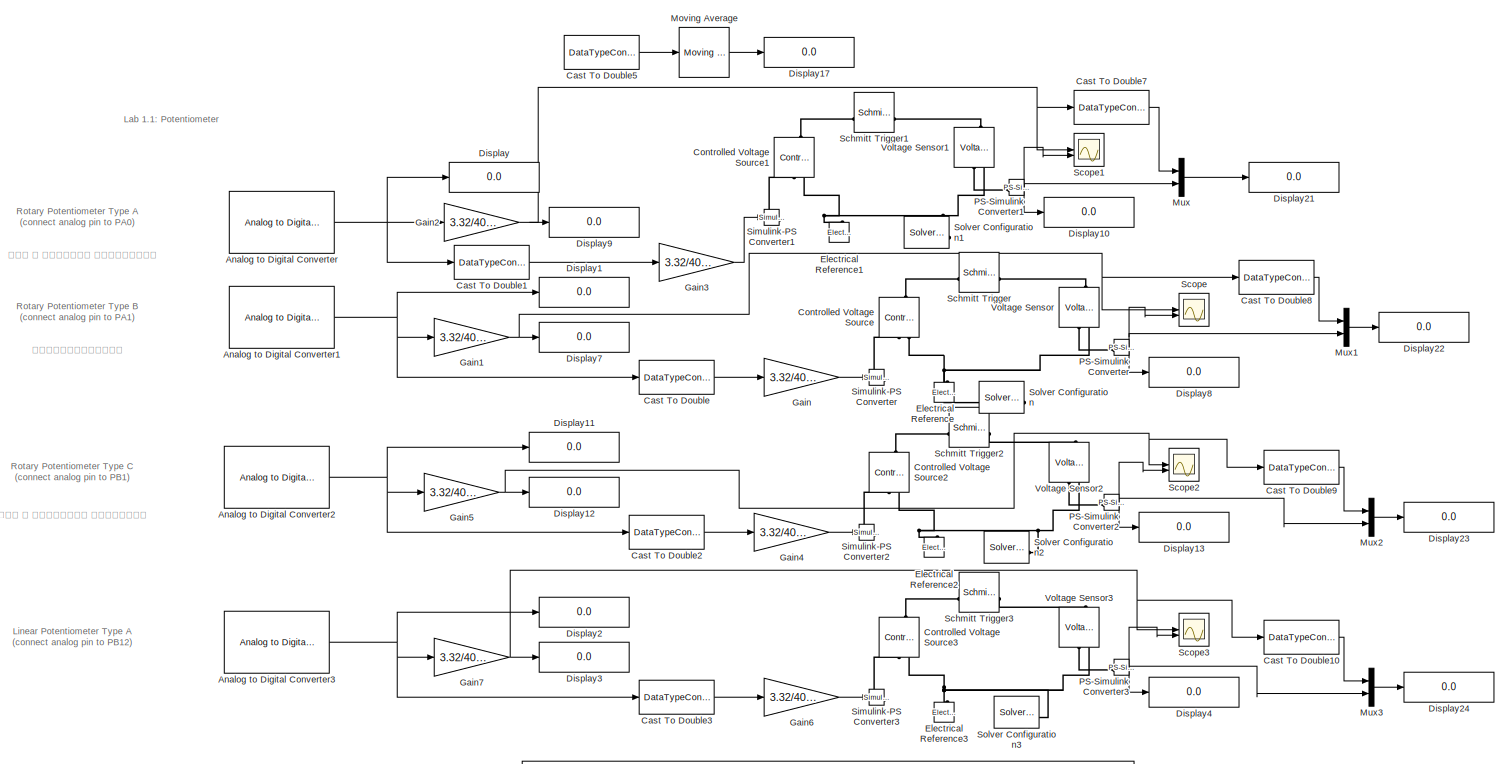
[diagram: root canvas - part 1/3, top left region]
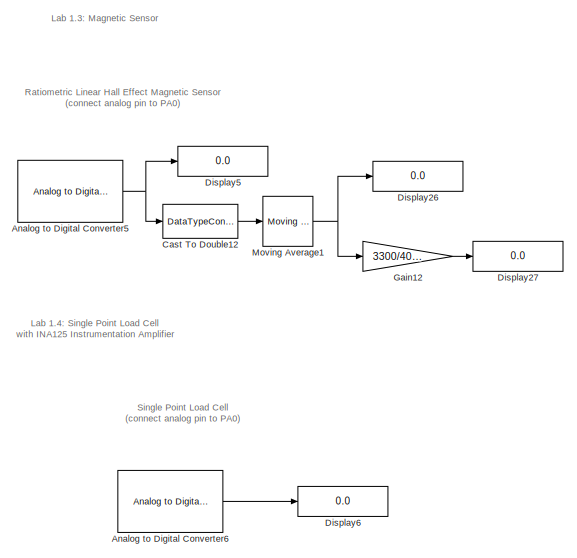
[diagram: root canvas - part 2/3, middle right region]
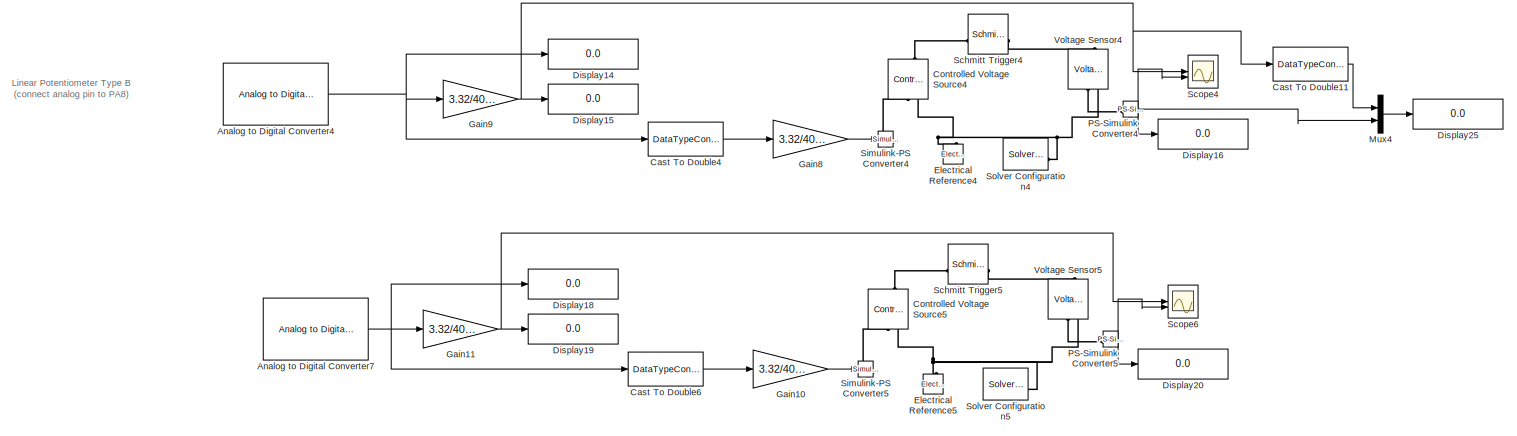
[diagram: root canvas - part 3/3, bottom left region]
MODEL slx_dd20733b9f0f
KIND model
CONFIG AbsTol = auto
CONFIG EnableMultiTasking = on
CONFIG FixedStep = auto
CONFIG MaxStep = auto
CONFIG MinStep = auto
CONFIG RelTol = 1e-3
CONFIG SampleTimeConstraint = Unconstrained
CONFIG SolverName = FixedStepAuto
CONFIG StartTime = 0.0
CONFIG StopTime = inf
BLOCK [Reference] Analog to Digital Converter  REF=stm32f4xxblockslib/Analog to Digital Converter
  Commented = on
  LibrarySourceBlock = stm32g4xxblockslib/Analog to Digital Converter
  SourceBlock = stm32f4xxblockslib/Analog to Digital Converter
  SourceType = stm32cube.blocks.AnalogInput
BLOCK [Reference] Analog to Digital Converter1  REF=stm32f4xxblockslib/Analog to Digital Converter
  Commented = on
  LibrarySourceBlock = stm32g4xxblockslib/Analog to Digital Converter
  SourceBlock = stm32f4xxblockslib/Analog to Digital Converter
  SourceType = stm32cube.blocks.AnalogInput
BLOCK [Reference] Analog to Digital Converter2  REF=stm32f4xxblockslib/Analog to Digital Converter
  Commented = on
  LibrarySourceBlock = stm32g4xxblockslib/Analog to Digital Converter
  SourceBlock = stm32f4xxblockslib/Analog to Digital Converter
  SourceType = stm32cube.blocks.AnalogInput
BLOCK [Reference] Analog to Digital Converter3  REF=stm32f4xxblockslib/Analog to Digital Converter
  Commented = on
  LibrarySourceBlock = stm32g4xxblockslib/Analog to Digital Converter
  SourceBlock = stm32f4xxblockslib/Analog to Digital Converter
  SourceType = stm32cube.blocks.AnalogInput
BLOCK [Reference] Analog to Digital Converter4  REF=stm32f4xxblockslib/Analog to Digital Converter
  Commented = on
  LibrarySourceBlock = stm32g4xxblockslib/Analog to Digital Converter
  SourceBlock = stm32f4xxblockslib/Analog to Digital Converter
  SourceType = stm32cube.blocks.AnalogInput
BLOCK [Reference] Analog to Digital Converter5  REF=stm32f4xxblockslib/Analog to Digital Converter
  LibrarySourceBlock = stm32g4xxblockslib/Analog to Digital Converter
  SourceBlock = stm32f4xxblockslib/Analog to Digital Converter
  SourceType = stm32cube.blocks.AnalogInput
BLOCK [Reference] Analog to Digital Converter6  REF=stm32f4xxblockslib/Analog to Digital Converter
  Commented = on
  LibrarySourceBlock = stm32g4xxblockslib/Analog to Digital Converter
  SourceBlock = stm32f4xxblockslib/Analog to Digital Converter
  SourceType = stm32cube.blocks.AnalogInput
BLOCK [Reference] Analog to Digital Converter7  REF=stm32f4xxblockslib/Analog to Digital Converter
  Commented = on
  LibrarySourceBlock = stm32g4xxblockslib/Analog to Digital Converter
  SourceBlock = stm32f4xxblockslib/Analog to Digital Converter
  SourceType = stm32cube.blocks.AnalogInput
BLOCK [DataTypeConversion] Cast To Double
  Commented = on
  OutDataTypeStr = double
  RndMeth = Floor
  SaturateOnIntegerOverflow = off
BLOCK [DataTypeConversion] Cast To Double1
  Commented = on
  OutDataTypeStr = double
  RndMeth = Floor
  SaturateOnIntegerOverflow = off
BLOCK [DataTypeConversion] Cast To Double10
  Commented = on
  OutDataTypeStr = double
  RndMeth = Floor
  SaturateOnIntegerOverflow = off
BLOCK [DataTypeConversion] Cast To Double11
  Commented = on
  OutDataTypeStr = double
  RndMeth = Floor
  SaturateOnIntegerOverflow = off
BLOCK [DataTypeConversion] Cast To Double12
  OutDataTypeStr = double
  RndMeth = Floor
  SaturateOnIntegerOverflow = off
BLOCK [DataTypeConversion] Cast To Double2
  Commented = on
  OutDataTypeStr = double
  RndMeth = Floor
  SaturateOnIntegerOverflow = off
BLOCK [DataTypeConversion] Cast To Double3
  Commented = on
  OutDataTypeStr = double
  RndMeth = Floor
  SaturateOnIntegerOverflow = off
BLOCK [DataTypeConversion] Cast To Double4
  Commented = on
  OutDataTypeStr = double
  RndMeth = Floor
  SaturateOnIntegerOverflow = off
BLOCK [DataTypeConversion] Cast To Double5
  Commented = on
  OutDataTypeStr = double
  RndMeth = Floor
  SaturateOnIntegerOverflow = off
BLOCK [DataTypeConversion] Cast To Double6
  Commented = on
  OutDataTypeStr = double
  RndMeth = Floor
  SaturateOnIntegerOverflow = off
BLOCK [DataTypeConversion] Cast To Double7
  Commented = on
  OutDataTypeStr = double
  RndMeth = Floor
  SaturateOnIntegerOverflow = off
BLOCK [DataTypeConversion] Cast To Double8
  Commented = on
  OutDataTypeStr = double
  RndMeth = Floor
  SaturateOnIntegerOverflow = off
BLOCK [DataTypeConversion] Cast To Double9
  Commented = on
  OutDataTypeStr = double
  RndMeth = Floor
  SaturateOnIntegerOverflow = off
BLOCK [Reference] Controlled Voltage Source  REF=fl_lib/Electrical/Electrical Sources/Controlled Voltage
Source
  Commented = on
  NameLocation = right
  SourceBlock = fl_lib/Electrical/Electrical Sources/Controlled Voltage\nSource
  SourceType = Controlled Voltage\nSource
BLOCK [Reference] Controlled Voltage Source1  REF=fl_lib/Electrical/Electrical Sources/Controlled Voltage
Source
  Commented = on
  NameLocation = right
  SourceBlock = fl_lib/Electrical/Electrical Sources/Controlled Voltage\nSource
  SourceType = Controlled Voltage\nSource
BLOCK [Reference] Controlled Voltage Source2  REF=fl_lib/Electrical/Electrical Sources/Controlled Voltage
Source
  Commented = on
  NameLocation = right
  SourceBlock = fl_lib/Electrical/Electrical Sources/Controlled Voltage\nSource
  SourceType = Controlled Voltage\nSource
BLOCK [Reference] Controlled Voltage Source3  REF=fl_lib/Electrical/Electrical Sources/Controlled Voltage
Source
  Commented = on
  NameLocation = right
  SourceBlock = fl_lib/Electrical/Electrical Sources/Controlled Voltage\nSource
  SourceType = Controlled Voltage\nSource
BLOCK [Reference] Controlled Voltage Source4  REF=fl_lib/Electrical/Electrical Sources/Controlled Voltage
Source
  Commented = on
  NameLocation = right
  SourceBlock = fl_lib/Electrical/Electrical Sources/Controlled Voltage\nSource
  SourceType = Controlled Voltage\nSource
BLOCK [Reference] Controlled Voltage Source5  REF=fl_lib/Electrical/Electrical Sources/Controlled Voltage
Source
  Commented = on
  NameLocation = right
  SourceBlock = fl_lib/Electrical/Electrical Sources/Controlled Voltage\nSource
  SourceType = Controlled Voltage\nSource
BLOCK [Display] Display
  Commented = on
  Decimation = 1
BLOCK [Display] Display1
  Commented = on
  Decimation = 1
BLOCK [Display] Display10
  Commented = on
  Decimation = 1
BLOCK [Display] Display11
  Commented = on
  Decimation = 1
BLOCK [Display] Display12
  Commented = on
  Decimation = 1
BLOCK [Display] Display13
  Commented = on
  Decimation = 1
BLOCK [Display] Display14
  Commented = on
  Decimation = 1
BLOCK [Display] Display15
  Commented = on
  Decimation = 1
BLOCK [Display] Display16
  Commented = on
  Decimation = 1
BLOCK [Display] Display17
  Commented = on
  Decimation = 1
BLOCK [Display] Display18
  Commented = on
  Decimation = 1
BLOCK [Display] Display19
  Commented = on
  Decimation = 1
BLOCK [Display] Display2
  Commented = on
  Decimation = 1
BLOCK [Display] Display20
  Commented = on
  Decimation = 1
BLOCK [Display] Display21
  Commented = on
  Decimation = 1
BLOCK [Display] Display22
  Commented = on
  Decimation = 1
BLOCK [Display] Display23
  Commented = on
  Decimation = 1
BLOCK [Display] Display24
  Commented = on
  Decimation = 1
BLOCK [Display] Display25
  Commented = on
  Decimation = 1
BLOCK [Display] Display26
  Decimation = 1
BLOCK [Display] Display27
  Decimation = 1
BLOCK [Display] Display3
  Commented = on
  Decimation = 1
BLOCK [Display] Display4
  Commented = on
  Decimation = 1
BLOCK [Display] Display5
  Decimation = 1
BLOCK [Display] Display6
  Commented = on
  Decimation = 1
BLOCK [Display] Display7
  Commented = on
  Decimation = 1
BLOCK [Display] Display8
  Commented = on
  Decimation = 1
BLOCK [Display] Display9
  Commented = on
  Decimation = 1
BLOCK [Reference] Electrical Reference  REF=fl_lib/Electrical/Electrical Elements/Electrical Reference
  Commented = on
  NameLocation = right
  SourceBlock = fl_lib/Electrical/Electrical Elements/Electrical Reference
  SourceType = Electrical Reference
BLOCK [Reference] Electrical Reference1  REF=fl_lib/Electrical/Electrical Elements/Electrical Reference
  Commented = on
  NameLocation = right
  SourceBlock = fl_lib/Electrical/Electrical Elements/Electrical Reference
  SourceType = Electrical Reference
BLOCK [Reference] Electrical Reference2  REF=fl_lib/Electrical/Electrical Elements/Electrical Reference
  Commented = on
  NameLocation = right
  SourceBlock = fl_lib/Electrical/Electrical Elements/Electrical Reference
  SourceType = Electrical Reference
BLOCK [Reference] Electrical Reference3  REF=fl_lib/Electrical/Electrical Elements/Electrical Reference
  Commented = on
  NameLocation = right
  SourceBlock = fl_lib/Electrical/Electrical Elements/Electrical Reference
  SourceType = Electrical Reference
BLOCK [Reference] Electrical Reference4  REF=fl_lib/Electrical/Electrical Elements/Electrical Reference
  Commented = on
  NameLocation = right
  SourceBlock = fl_lib/Electrical/Electrical Elements/Electrical Reference
  SourceType = Electrical Reference
BLOCK [Reference] Electrical Reference5  REF=fl_lib/Electrical/Electrical Elements/Electrical Reference
  Commented = on
  NameLocation = right
  SourceBlock = fl_lib/Electrical/Electrical Elements/Electrical Reference
  SourceType = Electrical Reference
BLOCK [Gain] Gain
  Commented = on
  Gain = 3.32/4095
BLOCK [Gain] Gain1
  Commented = on
  Gain = 3.32/4095
BLOCK [Gain] Gain10
  Commented = on
  Gain = 3.32/4095
BLOCK [Gain] Gain11
  Commented = on
  Gain = 3.32/4095
BLOCK [Gain] Gain12
  Gain = 3300/4095
BLOCK [Gain] Gain2
  Commented = on
  Gain = 3.32/4095
BLOCK [Gain] Gain3
  Commented = on
  Gain = 3.32/4095
BLOCK [Gain] Gain4
  Commented = on
  Gain = 3.32/4095
BLOCK [Gain] Gain5
  Commented = on
  Gain = 3.32/4095
BLOCK [Gain] Gain6
  Commented = on
  Gain = 3.32/4095
BLOCK [Gain] Gain7
  Commented = on
  Gain = 3.32/4095
BLOCK [Gain] Gain8
  Commented = on
  Gain = 3.32/4095
BLOCK [Gain] Gain9
  Commented = on
  Gain = 3.32/4095
BLOCK [Reference] Moving Average  REF=dspstat3/Moving
Average
  Commented = on
  SourceBlock = dspstat3/Moving\nAverage
  SourceType = dsp.simulink.MovingAverage
BLOCK [Reference] Moving Average1  REF=dspstat3/Moving
Average
  SourceBlock = dspstat3/Moving\nAverage
  SourceType = dsp.simulink.MovingAverage
BLOCK [Mux] Mux
  Commented = on
  DisplayOption = bar
  Inputs = 2
BLOCK [Mux] Mux1
  Commented = on
  DisplayOption = bar
  Inputs = 2
BLOCK [Mux] Mux2
  Commented = on
  DisplayOption = bar
  Inputs = 2
BLOCK [Mux] Mux3
  Commented = on
  DisplayOption = bar
  Inputs = 2
BLOCK [Mux] Mux4
  Commented = on
  DisplayOption = bar
  Inputs = 2
BLOCK [Reference] PS-Simulink Converter  REF=nesl_utility/PS-Simulink
Converter
  Commented = on
  SourceBlock = nesl_utility/PS-Simulink\nConverter
  SourceType = PS-Simulink\nConverter
BLOCK [Reference] PS-Simulink Converter1  REF=nesl_utility/PS-Simulink
Converter
  Commented = on
  SourceBlock = nesl_utility/PS-Simulink\nConverter
  SourceType = PS-Simulink\nConverter
BLOCK [Reference] PS-Simulink Converter2  REF=nesl_utility/PS-Simulink
Converter
  Commented = on
  SourceBlock = nesl_utility/PS-Simulink\nConverter
  SourceType = PS-Simulink\nConverter
BLOCK [Reference] PS-Simulink Converter3  REF=nesl_utility/PS-Simulink
Converter
  Commented = on
  SourceBlock = nesl_utility/PS-Simulink\nConverter
  SourceType = PS-Simulink\nConverter
BLOCK [Reference] PS-Simulink Converter4  REF=nesl_utility/PS-Simulink
Converter
  Commented = on
  SourceBlock = nesl_utility/PS-Simulink\nConverter
  SourceType = PS-Simulink\nConverter
BLOCK [Reference] PS-Simulink Converter5  REF=nesl_utility/PS-Simulink
Converter
  Commented = on
  SourceBlock = nesl_utility/PS-Simulink\nConverter
  SourceType = PS-Simulink\nConverter
BLOCK [Reference] Schmitt Trigger  REF=ee_lib/Integrated Circuits/Logic/Schmitt Trigger
  Commented = on
  SourceBlock = ee_lib/Integrated Circuits/Logic/Schmitt Trigger
  SourceType = Schmitt Trigger
BLOCK [Reference] Schmitt Trigger1  REF=ee_lib/Integrated Circuits/Logic/Schmitt Trigger
  Commented = on
  SourceBlock = ee_lib/Integrated Circuits/Logic/Schmitt Trigger
  SourceType = Schmitt Trigger
BLOCK [Reference] Schmitt Trigger2  REF=ee_lib/Integrated Circuits/Logic/Schmitt Trigger
  Commented = on
  SourceBlock = ee_lib/Integrated Circuits/Logic/Schmitt Trigger
  SourceType = Schmitt Trigger
BLOCK [Reference] Schmitt Trigger3  REF=ee_lib/Integrated Circuits/Logic/Schmitt Trigger
  Commented = on
  SourceBlock = ee_lib/Integrated Circuits/Logic/Schmitt Trigger
  SourceType = Schmitt Trigger
BLOCK [Reference] Schmitt Trigger4  REF=ee_lib/Integrated Circuits/Logic/Schmitt Trigger
  Commented = on
  SourceBlock = ee_lib/Integrated Circuits/Logic/Schmitt Trigger
  SourceType = Schmitt Trigger
BLOCK [Reference] Schmitt Trigger5  REF=ee_lib/Integrated Circuits/Logic/Schmitt Trigger
  Commented = on
  SourceBlock = ee_lib/Integrated Circuits/Logic/Schmitt Trigger
  SourceType = Schmitt Trigger
BLOCK [Scope] Scope
  ActiveDisplayYMaximum = 3.797040042962041
  ActiveDisplayYMinimum = -0.35294750562766508
  Commented = on
  ContainerLayout = {"WindowBounds":[109,47,1294,806],"gridDimensions":{"w":1,"h":1},"tileCount":1,"tileCoverage":1,"columnWeights":1,"rowWeights":1,"tileOccupancy":{"children":[{"id":"/Scope"},{"id":"/Scope1"},{"id":"/Scope2"},{"id":"/Scope3"},{"id":"/Scope4"},{"id":"/Scope6"}]}}  <repeated x6 — deduplicated; at blocks: Scope, Scope1, Scope2, Scope3, Scope4, Scope6>
  Floating = off
  GraphicalSettings = {"Style":{"BackgroundColor":[0.12941176470588237,0.12941176470588237,0.12941176470588237],"AxesColor":[0.07058823529411765,0.07058823529411765,0.07058823529411765],"LabelsColor":[0.8509803921568627,0.8509803921568627,0.8509803921568627],"PreserveColors":false,"Visible":[true,true],"LineStyle":["-","-"],"LineWidth":[1.5,1.5],"BarWidth":[0.9,0.9],"LineColor":["auto","auto"],"LineFaceAlpha":[1,1],"Li...<+2134ch>
  MultipleDisplayCache = [{"MaxYLimMag":3.7349887937307358,"MaxYLimReal":3.797040042962041,"MinYLimMag":0,"MinYLimReal":-0.35294750562766508,"PlotAsMagnitudePhase":false,"ShowGrid":true,"ShowLegend":false,"Title":"%<SignalLabel>","YLabel":""}]
  NumInputPorts = 2
  ScopeFrameLocation = container
  Visible = on
  WasSavedAsWebScope = on
  WindowPosition = [109.000000,11.000000,1294.000000,806.000000,]
BLOCK [Scope] Scope1
  ActiveDisplayYMaximum = 3.773423135507942
  ActiveDisplayYMinimum = -0.58406379051125068
  Commented = on
  DataLoggingVariableName = ScopeData1
  Floating = off
  GraphicalSettings = {"Style":{"BackgroundColor":[0.12941176470588237,0.12941176470588237,0.12941176470588237],"AxesColor":[0.07058823529411765,0.07058823529411765,0.07058823529411765],"LabelsColor":[0.8509803921568627,0.8509803921568627,0.8509803921568627],"PreserveColors":false,"Visible":[true,true],"LineStyle":["-","-"],"LineWidth":[1.5,1.5],"BarWidth":[0.9,0.9],"LineColor":["auto","auto"],"LineFaceAlpha":[1,1],"Li...<+2136ch>
  MultipleDisplayCache = [{"MaxYLimMag":3.7349887937307358,"MaxYLimReal":3.773423135507942,"MinYLimMag":0,"MinYLimReal":-0.58406379051125068,"PlotAsMagnitudePhase":false,"ShowGrid":true,"ShowLegend":false,"Title":"%<SignalLabel>","YLabel":""}]
  NumInputPorts = 2
  ScopeFrameLocation = container
  Visible = on
  WasSavedAsWebScope = on
  WindowPosition = [109.000000,11.000000,1294.000000,806.000000,]
BLOCK [Scope] Scope2
  ActiveDisplayYMaximum = 5.3680687455364664
  ActiveDisplayYMinimum = -1.069924034550259
  Commented = on
  DataLoggingVariableName = ScopeData2
  Floating = off
  GraphicalSettings = {"AxesScalingProperties":{"AlignXAxis":"Center","AlignYAxis":"Center","AutoScaleXAxisLimits":false,"AxesScaling":"Manual","AxesScalingNumUpdates":10,"ExpandOnly":true,"ScaleAxesLimitsAtStop":false,"XAxisDataRange":100,"YAxisDataRange":80},"DisplayProperties":{"ColorOrder":["auto","auto","auto","auto","auto","auto","auto","auto","auto","auto","auto","auto","auto","auto","auto","auto","auto","auto",...<+2143ch>
  MultipleDisplayCache = [{"MaxYLimMag":3.7349887937307358,"MaxYLimReal":5.3680687455364664,"MinYLimMag":0,"MinYLimReal":-1.069924034550259,"PlotAsMagnitudePhase":false,"ShowGrid":true,"ShowLegend":false,"Title":"%<SignalLabel>","YLabel":""}]
  NumInputPorts = 2
  ScopeFrameLocation = container
  Visible = on
  WasSavedAsWebScope = on
  WindowPosition = [109.000000,11.000000,1294.000000,806.000000,]
BLOCK [Scope] Scope3
  ActiveDisplayYMaximum = 3.375
  ActiveDisplayYMinimum = -0.37499999999999989
  Commented = on
  DataLoggingVariableName = ScopeData3
  Floating = off
  GraphicalSettings = {"Style":{"BackgroundColor":[0.12941176470588237,0.12941176470588237,0.12941176470588237],"AxesColor":[0.07058823529411765,0.07058823529411765,0.07058823529411765],"LabelsColor":[0.8509803921568627,0.8509803921568627,0.8509803921568627],"PreserveColors":false,"Visible":[true,true],"LineStyle":["-","-"],"LineWidth":[1.5,1.5],"BarWidth":[0.9,0.9],"LineColor":["auto","auto"],"LineFaceAlpha":[1,1],"Li...<+2088ch>
  MultipleDisplayCache = [{"MaxYLimMag":3.375,"MaxYLimReal":3.375,"MinYLimMag":0,"MinYLimReal":-0.37499999999999989,"PlotAsMagnitudePhase":false,"ShowGrid":true,"ShowLegend":false,"Title":"%<SignalLabel>","YLabel":""}]
  NumInputPorts = 2
  ScopeFrameLocation = container
  Visible = on
  WasSavedAsWebScope = on
  WindowPosition = [109.000000,11.000000,1294.000000,806.000000,]
BLOCK [Scope] Scope4
  ActiveDisplayYMaximum = 2.4207253436759375
  ActiveDisplayYMinimum = -1.4986962919239719
  Commented = on
  DataLoggingVariableName = ScopeData4
  Floating = off
  GraphicalSettings = {"Style":{"BackgroundColor":[0.12941176470588237,0.12941176470588237,0.12941176470588237],"AxesColor":[0.07058823529411765,0.07058823529411765,0.07058823529411765],"LabelsColor":[0.8509803921568627,0.8509803921568627,0.8509803921568627],"PreserveColors":false,"Visible":[true,true],"LineStyle":["-","-"],"LineWidth":[1.5,1.5],"BarWidth":[0.9,0.9],"LineColor":["auto","auto"],"LineFaceAlpha":[1,1],"Li...<+2136ch>
  MultipleDisplayCache = [{"MaxYLimMag":3.7349887937307358,"MaxYLimReal":2.4207253436759375,"MinYLimMag":0,"MinYLimReal":-1.4986962919239719,"PlotAsMagnitudePhase":false,"ShowGrid":true,"ShowLegend":false,"Title":"%<SignalLabel>","YLabel":""}]
  NumInputPorts = 2
  ScopeFrameLocation = container
  Visible = on
  WasSavedAsWebScope = on
  WindowPosition = [109.000000,11.000000,1294.000000,806.000000,]
BLOCK [Scope] Scope6
  ActiveDisplayYMaximum = 4.9393706253992313
  ActiveDisplayYMinimum = -1.3215835316863527
  Commented = on
  DataLoggingVariableName = ScopeData6
  Floating = off
  GraphicalSettings = {"Style":{"BackgroundColor":[0.12941176470588237,0.12941176470588237,0.12941176470588237],"AxesColor":[0.07058823529411765,0.07058823529411765,0.07058823529411765],"LabelsColor":[0.8509803921568627,0.8509803921568627,0.8509803921568627],"PreserveColors":false,"Visible":[true,true],"LineStyle":["-","-"],"LineWidth":[1.5,1.5],"BarWidth":[0.9,0.9],"LineColor":["auto","auto"],"LineFaceAlpha":[1,1],"Li...<+2138ch>
  MultipleDisplayCache = [{"MaxYLimMag":3.7349887937307358,"MaxYLimReal":4.9393706253992313,"MinYLimMag":0,"MinYLimReal":-1.3215835316863527,"PlotAsMagnitudePhase":false,"ShowGrid":true,"ShowLegend":false,"Title":"%<SignalLabel>","YLabel":""}]
  NumInputPorts = 2
  ScopeFrameLocation = container
  Visible = on
  WasSavedAsWebScope = on
  WindowPosition = [109.000000,11.000000,1294.000000,806.000000,]
BLOCK [Reference] Simulink-PS Converter  REF=nesl_utility/Simulink-PS
Converter
  Commented = on
  SourceBlock = nesl_utility/Simulink-PS\nConverter
  SourceType = Simulink-PS\nConverter
BLOCK [Reference] Simulink-PS Converter1  REF=nesl_utility/Simulink-PS
Converter
  Commented = on
  SourceBlock = nesl_utility/Simulink-PS\nConverter
  SourceType = Simulink-PS\nConverter
BLOCK [Reference] Simulink-PS Converter2  REF=nesl_utility/Simulink-PS
Converter
  Commented = on
  SourceBlock = nesl_utility/Simulink-PS\nConverter
  SourceType = Simulink-PS\nConverter
BLOCK [Reference] Simulink-PS Converter3  REF=nesl_utility/Simulink-PS
Converter
  Commented = on
  SourceBlock = nesl_utility/Simulink-PS\nConverter
  SourceType = Simulink-PS\nConverter
BLOCK [Reference] Simulink-PS Converter4  REF=nesl_utility/Simulink-PS
Converter
  Commented = on
  SourceBlock = nesl_utility/Simulink-PS\nConverter
  SourceType = Simulink-PS\nConverter
BLOCK [Reference] Simulink-PS Converter5  REF=nesl_utility/Simulink-PS
Converter
  Commented = on
  SourceBlock = nesl_utility/Simulink-PS\nConverter
  SourceType = Simulink-PS\nConverter
BLOCK [Reference] Solver Configuration  REF=nesl_utility/Solver
Configuration
  Commented = on
  SourceBlock = nesl_utility/Solver\nConfiguration
  SourceType = Solver\nConfiguration
BLOCK [Reference] Solver Configuration1  REF=nesl_utility/Solver
Configuration
  Commented = on
  SourceBlock = nesl_utility/Solver\nConfiguration
  SourceType = Solver\nConfiguration
BLOCK [Reference] Solver Configuration2  REF=nesl_utility/Solver
Configuration
  Commented = on
  SourceBlock = nesl_utility/Solver\nConfiguration
  SourceType = Solver\nConfiguration
BLOCK [Reference] Solver Configuration3  REF=nesl_utility/Solver
Configuration
  Commented = on
  SourceBlock = nesl_utility/Solver\nConfiguration
  SourceType = Solver\nConfiguration
BLOCK [Reference] Solver Configuration4  REF=nesl_utility/Solver
Configuration
  Commented = on
  SourceBlock = nesl_utility/Solver\nConfiguration
  SourceType = Solver\nConfiguration
BLOCK [Reference] Solver Configuration5  REF=nesl_utility/Solver
Configuration
  Commented = on
  SourceBlock = nesl_utility/Solver\nConfiguration
  SourceType = Solver\nConfiguration
BLOCK [Reference] Voltage Sensor  REF=fl_lib/Electrical/Electrical Sensors/Voltage Sensor
  Commented = on
  NameLocation = right
  SourceBlock = fl_lib/Electrical/Electrical Sensors/Voltage Sensor
  SourceType = Voltage Sensor
BLOCK [Reference] Voltage Sensor1  REF=fl_lib/Electrical/Electrical Sensors/Voltage Sensor
  Commented = on
  NameLocation = right
  SourceBlock = fl_lib/Electrical/Electrical Sensors/Voltage Sensor
  SourceType = Voltage Sensor
BLOCK [Reference] Voltage Sensor2  REF=fl_lib/Electrical/Electrical Sensors/Voltage Sensor
  Commented = on
  NameLocation = right
  SourceBlock = fl_lib/Electrical/Electrical Sensors/Voltage Sensor
  SourceType = Voltage Sensor
BLOCK [Reference] Voltage Sensor3  REF=fl_lib/Electrical/Electrical Sensors/Voltage Sensor
  Commented = on
  NameLocation = right
  SourceBlock = fl_lib/Electrical/Electrical Sensors/Voltage Sensor
  SourceType = Voltage Sensor
BLOCK [Reference] Voltage Sensor4  REF=fl_lib/Electrical/Electrical Sensors/Voltage Sensor
  Commented = on
  NameLocation = right
  SourceBlock = fl_lib/Electrical/Electrical Sensors/Voltage Sensor
  SourceType = Voltage Sensor
BLOCK [Reference] Voltage Sensor5  REF=fl_lib/Electrical/Electrical Sensors/Voltage Sensor
  Commented = on
  NameLocation = right
  SourceBlock = fl_lib/Electrical/Electrical Sensors/Voltage Sensor
  SourceType = Voltage Sensor
ANNOTATION (root): Single Point Load Cell (connect analog pin to PA0)
ANNOTATION (root): Lab 1.4: Single Point Load Cell with INA125 Instrumentation Amplifier
ANNOTATION (root): Ratiometric Linear Hall Effect Magnetic Sensor (connect analog pin to PA0)
ANNOTATION (root): Lab 1.1: Potentiometer
ANNOTATION (root): Lab 1.3: Magnetic Sensor
ANNOTATION (root): อัตราเท่าเดิม
ANNOTATION (root): แรก ๆ ขึ้นช้า หลังๆเร็ว
ANNOTATION (root): แรก ๆ ขึ้นเร็ว หลังๆช้า
ANNOTATION (root): Rotary Potentiometer Type A (connect analog pin to PA0)
ANNOTATION (root): Linear Potentiometer Type A (connect analog pin to PB12)
ANNOTATION (root): Linear Potentiometer Type B (connect analog pin to PA8)
ANNOTATION (root): Rotary Potentiometer Type B (connect analog pin to PA1)
ANNOTATION (root): Rotary Potentiometer Type C (connect analog pin to PB1)
NET Analog to Digital Converter1:1 -> Cast To Double:1, Display1:1, Gain1:1
NET Analog to Digital Converter2:1 -> Cast To Double2:1, Display11:1, Gain5:1
NET Analog to Digital Converter3:1 -> Cast To Double3:1, Display2:1, Gain7:1
NET Analog to Digital Converter4:1 -> Cast To Double4:1, Display14:1, Gain9:1
NET Analog to Digital Converter5:1 -> Cast To Double12:1, Display5:1
LINE Analog to Digital Converter6:1 -> Display6:1
NET Analog to Digital Converter7:1 -> Cast To Double6:1, Display18:1, Gain11:1
NET Analog to Digital Converter:1 -> Cast To Double1:1, Display:1, Gain2:1
LINE Cast To Double10:1 -> Mux3:1
LINE Cast To Double11:1 -> Mux4:1
LINE Cast To Double12:1 -> Moving Average1:1
LINE Cast To Double1:1 -> Gain3:1
LINE Cast To Double2:1 -> Gain4:1
LINE Cast To Double3:1 -> Gain6:1
LINE Cast To Double4:1 -> Gain8:1
LINE Cast To Double5:1 -> Moving Average:1
LINE Cast To Double6:1 -> Gain10:1
LINE Cast To Double7:1 -> Mux:1
LINE Cast To Double8:1 -> Mux1:1
LINE Cast To Double9:1 -> Mux2:1
LINE Cast To Double:1 -> Gain:1
LINE Gain10:1 -> Simulink-PS Converter5:1
NET Gain11:1 -> Display19:1, Scope6:1
LINE Gain12:1 -> Display27:1
NET Gain1:1 -> Cast To Double8:1, Display7:1, Scope:1
NET Gain2:1 -> Cast To Double7:1, Display9:1, Scope1:1
LINE Gain3:1 -> Simulink-PS Converter1:1
LINE Gain4:1 -> Simulink-PS Converter2:1
NET Gain5:1 -> Cast To Double9:1, Display12:1, Scope2:1
LINE Gain6:1 -> Simulink-PS Converter3:1
NET Gain7:1 -> Cast To Double10:1, Display3:1, Scope3:1
LINE Gain8:1 -> Simulink-PS Converter4:1
NET Gain9:1 -> Cast To Double11:1, Display15:1, Scope4:1
LINE Gain:1 -> Simulink-PS Converter:1
NET Moving Average1:1 -> Display26:1, Gain12:1
LINE Moving Average:1 -> Display17:1
LINE Mux1:1 -> Display22:1
LINE Mux2:1 -> Display23:1
LINE Mux3:1 -> Display24:1
LINE Mux4:1 -> Display25:1
LINE Mux:1 -> Display21:1
NET PS-Simulink Converter1:1 -> Display10:1, Mux:2, Scope1:2
NET PS-Simulink Converter2:1 -> Display13:1, Mux2:2, Scope2:2
NET PS-Simulink Converter3:1 -> Display4:1, Mux3:2, Scope3:2
NET PS-Simulink Converter4:1 -> Display16:1, Mux4:2, Scope4:2
NET PS-Simulink Converter5:1 -> Display20:1, Scope6:2
NET PS-Simulink Converter:1 -> Display8:1, Mux1:2, Scope:2
PLINE Controlled Voltage Source1:LConn1 -- Schmitt Trigger1:LConn1
PLINE Controlled Voltage Source1:RConn1 -- Simulink-PS Converter1:RConn1
PNET net1: Controlled Voltage Source1:RConn2 -- Electrical Reference1:LConn1 -- Solver Configuration1:RConn1 -- Voltage Sensor1:RConn2
PLINE Controlled Voltage Source2:LConn1 -- Schmitt Trigger2:LConn1
PLINE Controlled Voltage Source2:RConn1 -- Simulink-PS Converter2:RConn1
PNET net2: Controlled Voltage Source2:RConn2 -- Electrical Reference2:LConn1 -- Solver Configuration2:RConn1 -- Voltage Sensor2:RConn2
PLINE Controlled Voltage Source3:LConn1 -- Schmitt Trigger3:LConn1
PLINE Controlled Voltage Source3:RConn1 -- Simulink-PS Converter3:RConn1
PNET net3: Controlled Voltage Source3:RConn2 -- Electrical Reference3:LConn1 -- Solver Configuration3:RConn1 -- Voltage Sensor3:RConn2
PLINE Controlled Voltage Source4:LConn1 -- Schmitt Trigger4:LConn1
PLINE Controlled Voltage Source4:RConn1 -- Simulink-PS Converter4:RConn1
PNET net4: Controlled Voltage Source4:RConn2 -- Electrical Reference4:LConn1 -- Solver Configuration4:RConn1 -- Voltage Sensor4:RConn2
PLINE Controlled Voltage Source5:LConn1 -- Schmitt Trigger5:LConn1
PLINE Controlled Voltage Source5:RConn1 -- Simulink-PS Converter5:RConn1
PNET net5: Controlled Voltage Source5:RConn2 -- Electrical Reference5:LConn1 -- Solver Configuration5:RConn1 -- Voltage Sensor5:RConn2
PLINE Controlled Voltage Source:LConn1 -- Schmitt Trigger:LConn1
PLINE Controlled Voltage Source:RConn1 -- Simulink-PS Converter:RConn1
PNET net6: Controlled Voltage Source:RConn2 -- Electrical Reference:LConn1 -- Solver Configuration:RConn1 -- Voltage Sensor:RConn2
PLINE PS-Simulink Converter1:LConn1 -- Voltage Sensor1:RConn1
PLINE PS-Simulink Converter2:LConn1 -- Voltage Sensor2:RConn1
PLINE PS-Simulink Converter3:LConn1 -- Voltage Sensor3:RConn1
PLINE PS-Simulink Converter4:LConn1 -- Voltage Sensor4:RConn1
PLINE PS-Simulink Converter5:LConn1 -- Voltage Sensor5:RConn1
PLINE PS-Simulink Converter:LConn1 -- Voltage Sensor:RConn1
PLINE Schmitt Trigger1:RConn1 -- Voltage Sensor1:LConn1
PLINE Schmitt Trigger2:RConn1 -- Voltage Sensor2:LConn1
PLINE Schmitt Trigger3:RConn1 -- Voltage Sensor3:LConn1
PLINE Schmitt Trigger4:RConn1 -- Voltage Sensor4:LConn1
PLINE Schmitt Trigger5:RConn1 -- Voltage Sensor5:LConn1
PLINE Schmitt Trigger:RConn1 -- Voltage Sensor:LConn1
note: NET lines group one-source signal fan-out (src -> all destinations, sorted); 1:1 wires keep LINE; PNET lines group multi-terminal physical nets as a canonical sorted terminal list (undirected conserving connections); 2-terminal nets keep the pairwise PLINE form
